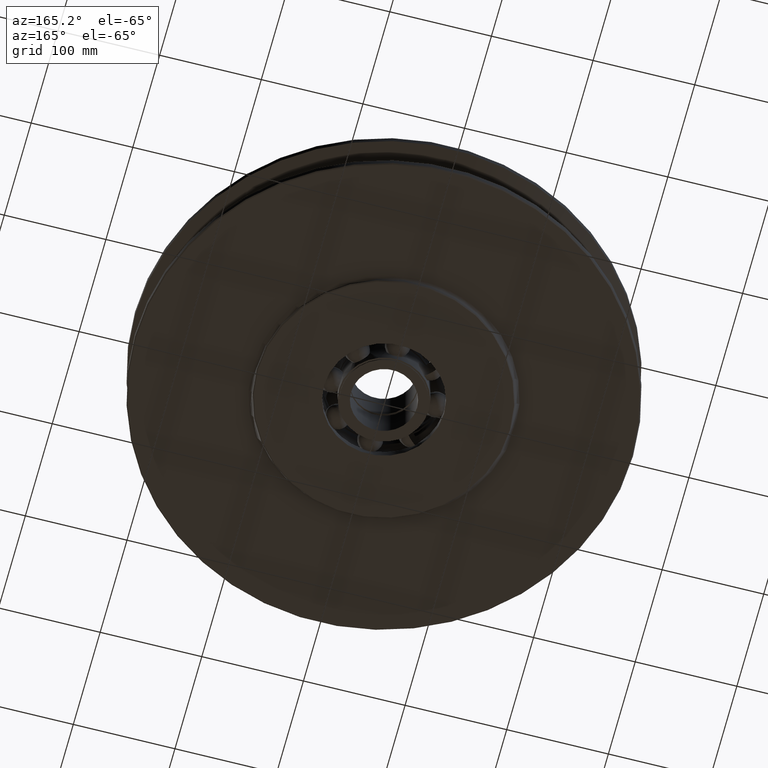
[diagram: clean part render]
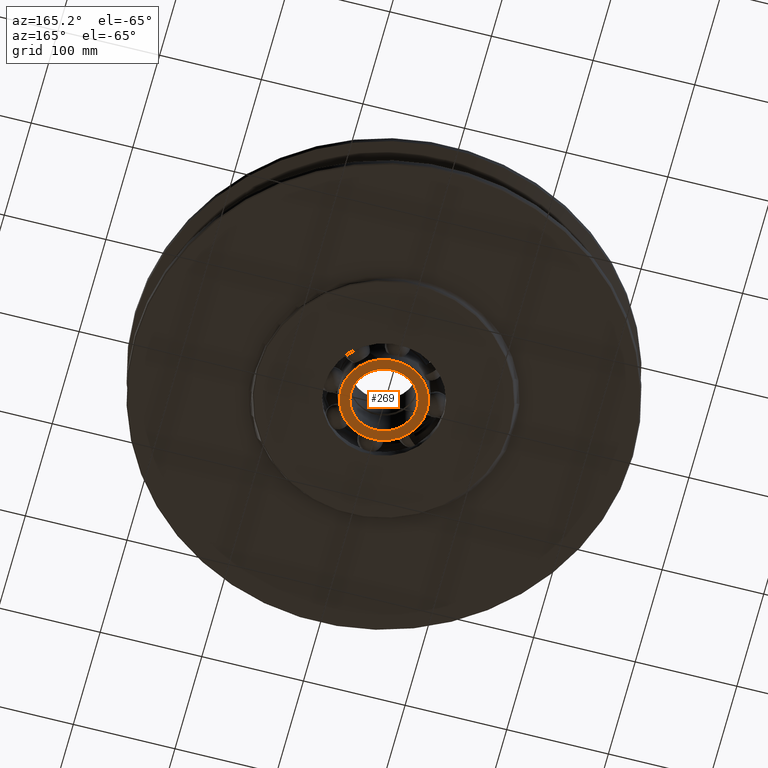
[diagram: same view with one face highlighted and labeled with its STEP entity id]
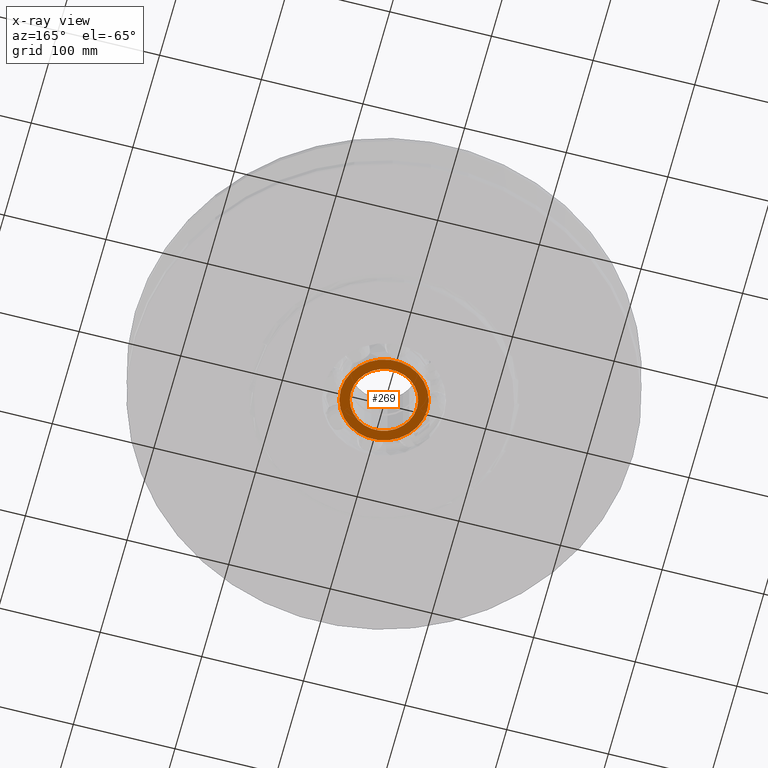
[diagram: x-ray of the same camera — body ghosted, the highlighted face saturated]
A machine part, auxiliary view. The second image highlights one B-rep face of the part: STEP entity #269.
The next image is the same camera in x-ray: the body ghosted, the highlighted face saturated — about 0% of this face is hidden behind the body in this view.
In plain terms, the highlighted planar face has unit normal (0, 0, -1).
Its self-contained STEP definition (entity closure, byte-faithful):
#269=ADVANCED_FACE('',(#604,#605),#606,.T.);
#604=FACE_BOUND('',#1014,.T.);
#605=FACE_OUTER_BOUND('',#1015,.T.);
#606=PLANE('',#1016);
#1014=EDGE_LOOP('',(#1859,#1860));
#1015=EDGE_LOOP('',(#1861,#1862));
#1016=AXIS2_PLACEMENT_3D('',#1863,#1864,#1865);
#1859=ORIENTED_EDGE('',*,*,#2951,.T.);
#1860=ORIENTED_EDGE('',*,*,#2934,.T.);
#1861=ORIENTED_EDGE('',*,*,#2949,.T.);
#1862=ORIENTED_EDGE('',*,*,#2944,.T.);
#1863=CARTESIAN_POINT('',(0.0,0.0,-36.0));
#1864=DIRECTION('',(0.0,0.0,-1.0));
#1865=DIRECTION('',(-1.0,0.0,0.0));
#2934=EDGE_CURVE('',#3725,#3722,#3726,.T.);
#2944=EDGE_CURVE('',#3743,#3740,#3744,.T.);
#2949=EDGE_CURVE('',#3740,#3743,#3750,.T.);
#2951=EDGE_CURVE('',#3722,#3725,#3752,.T.);
#3722=VERTEX_POINT('',#7827);
#3725=VERTEX_POINT('',#7831);
#3726=CIRCLE('',#7832,32.5);
#3740=VERTEX_POINT('',#7849);
#3743=VERTEX_POINT('',#7853);
#3744=CIRCLE('',#7854,42.5);
#3750=CIRCLE('',#7861,42.5);
#3752=CIRCLE('',#7863,32.5);
#7827=CARTESIAN_POINT('',(32.5,0.0,-36.0));
#7831=CARTESIAN_POINT('',(-32.5,-3.9801020972289E-015,-36.0));
#7832=AXIS2_PLACEMENT_3D('',#9597,#9598,#9599);
#7849=CARTESIAN_POINT('',(42.5,0.0,-36.0));
#7853=CARTESIAN_POINT('',(-42.5,5.20474889637625E-015,-36.0));
#7854=AXIS2_PLACEMENT_3D('',#9613,#9614,#9615);
#7861=AXIS2_PLACEMENT_3D('',#9623,#9624,#9625);
#7863=AXIS2_PLACEMENT_3D('',#9626,#9627,#9628);
#9597=CARTESIAN_POINT('',(0.0,0.0,-36.0));
#9598=DIRECTION('',(0.0,-0.0,1.0));
#9599=DIRECTION('',(1.0,0.0,0.0));
#9613=CARTESIAN_POINT('',(0.0,0.0,-36.0));
#9614=DIRECTION('',(0.0,0.0,-1.0));
#9615=DIRECTION('',(1.0,0.0,0.0));
#9623=CARTESIAN_POINT('',(0.0,0.0,-36.0));
#9624=DIRECTION('',(0.0,0.0,-1.0));
#9625=DIRECTION('',(1.0,0.0,0.0));
#9626=CARTESIAN_POINT('',(0.0,0.0,-36.0));
#9627=DIRECTION('',(0.0,-0.0,1.0));
#9628=DIRECTION('',(1.0,0.0,0.0));